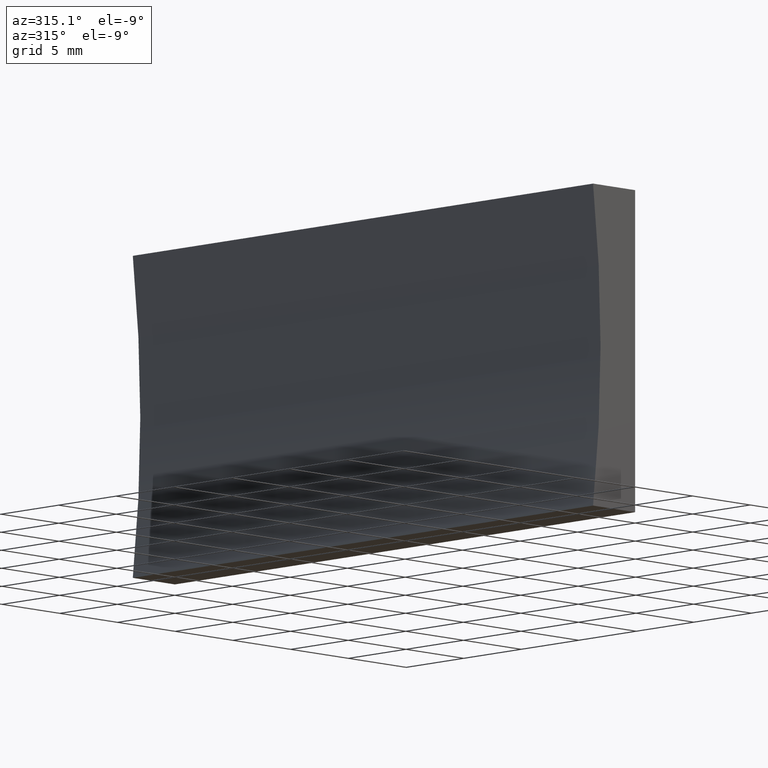
[diagram: clean part render]
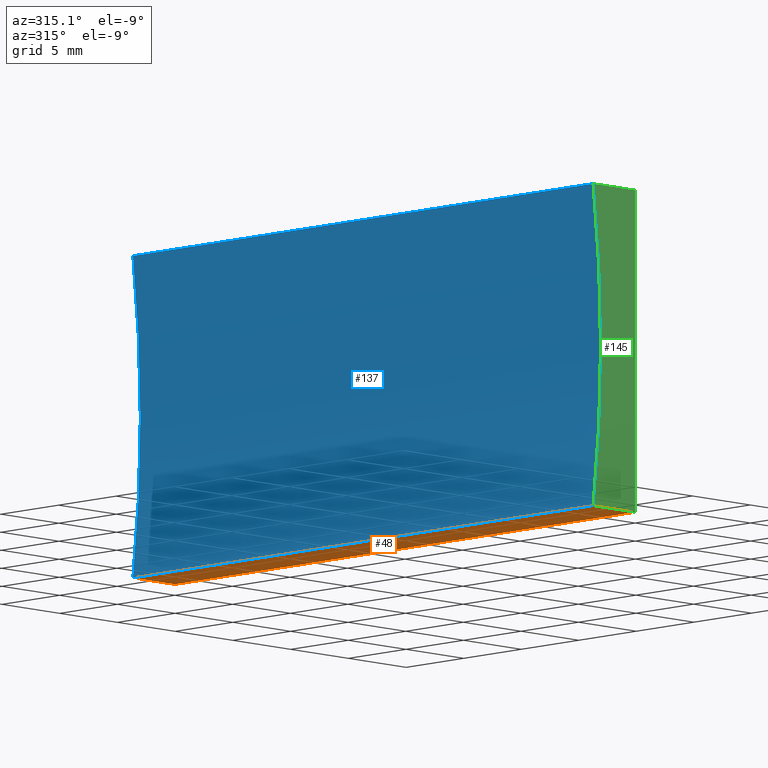
[diagram: same view with three faces highlighted in distinct colors, each labeled with its STEP entity id]
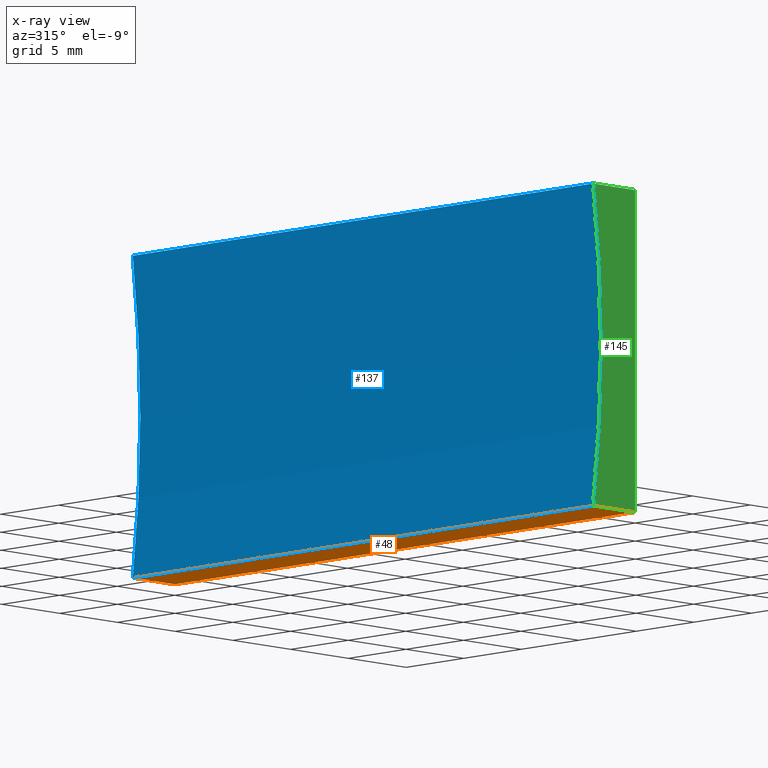
[diagram: x-ray of the same camera — body ghosted, the three highlighted faces saturated]
A machine part, auxiliary view with three faces highlighted in distinct colors.
The next image is the same camera in x-ray (body ghosted, the three faces saturated) — at least one of them is partly hidden behind the body in this view.
Their STEP definitions:

[orange] entity #48 — the highlighted planar face has unit normal (-0, 0, 1).
#10 = VECTOR ( 'NONE', #49, 1000.000000000000000 ) ;
#17 = DIRECTION ( 'NONE',  ( -1.000000000000000000, 0.0000000000000000000, -9.511984616419059400E-016 ) ) ;
#18 = VERTEX_POINT ( 'NONE', #139 ) ;
#25 = CARTESIAN_POINT ( 'NONE',  ( -3.647448026739705400, 40.00000000000000000, 0.0000000000000000000 ) ) ;
#28 = CARTESIAN_POINT ( 'NONE',  ( -3.647448026739705400, 40.00000000000000000, 0.0000000000000000000 ) ) ;
#33 = ORIENTED_EDGE ( 'NONE', *, *, #162, .T. ) ;
#38 = VECTOR ( 'NONE', #168, 1000.000000000000000 ) ;
#39 = AXIS2_PLACEMENT_3D ( 'NONE', #133, #102, #121 ) ;
#45 = ORIENTED_EDGE ( 'NONE', *, *, #60, .F. ) ;
#48 = ADVANCED_FACE ( 'NONE', ( #185 ), #146, .F. ) ;
#49 = DIRECTION ( 'NONE',  ( -0.0000000000000000000, -1.000000000000000000, -0.0000000000000000000 ) ) ;
#59 = EDGE_CURVE ( 'NONE', #18, #95, #196, .T. ) ;
#60 = EDGE_CURVE ( 'NONE', #95, #189, #86, .T. ) ;
#62 = CARTESIAN_POINT ( 'NONE',  ( 0.0000000000000000000, 0.0000000000000000000, 0.0000000000000000000 ) ) ;
#64 = CARTESIAN_POINT ( 'NONE',  ( 0.0000000000000000000, 40.00000000000000000, 0.0000000000000000000 ) ) ;
#69 = ORIENTED_EDGE ( 'NONE', *, *, #59, .F. ) ;
#86 = LINE ( 'NONE', #25, #10 ) ;
#95 = VERTEX_POINT ( 'NONE', #28 ) ;
#100 = CARTESIAN_POINT ( 'NONE',  ( 0.0000000000000000000, 40.00000000000000000, 0.0000000000000000000 ) ) ;
#102 = DIRECTION ( 'NONE',  ( -9.511984616419059400E-016, 0.0000000000000000000, 1.000000000000000000 ) ) ;
#108 = VERTEX_POINT ( 'NONE', #62 ) ;
#121 = DIRECTION ( 'NONE',  ( 1.000000000000000000, 0.0000000000000000000, 9.511984616419059400E-016 ) ) ;
#123 = ORIENTED_EDGE ( 'NONE', *, *, #130, .T. ) ;
#129 = EDGE_LOOP ( 'NONE', ( #33, #45, #69, #123 ) ) ;
#130 = EDGE_CURVE ( 'NONE', #18, #108, #148, .T. ) ;
#133 = CARTESIAN_POINT ( 'NONE',  ( 0.0000000000000000000, 40.00000000000000000, 0.0000000000000000000 ) ) ;
#136 = VECTOR ( 'NONE', #17, 1000.000000000000000 ) ;
#139 = CARTESIAN_POINT ( 'NONE',  ( 0.0000000000000000000, 40.00000000000000000, 0.0000000000000000000 ) ) ;
#146 = PLANE ( 'NONE',  #39 ) ;
#148 = LINE ( 'NONE', #64, #38 ) ;
#152 = CARTESIAN_POINT ( 'NONE',  ( 0.0000000000000000000, 0.0000000000000000000, 0.0000000000000000000 ) ) ;
#155 = CARTESIAN_POINT ( 'NONE',  ( -3.647448026739705400, 0.0000000000000000000, 0.0000000000000000000 ) ) ;
#162 = EDGE_CURVE ( 'NONE', #108, #189, #201, .T. ) ;
#163 = DIRECTION ( 'NONE',  ( -1.000000000000000000, 0.0000000000000000000, -9.511984616419059400E-016 ) ) ;
#168 = DIRECTION ( 'NONE',  ( -0.0000000000000000000, -1.000000000000000000, -0.0000000000000000000 ) ) ;
#171 = VECTOR ( 'NONE', #163, 1000.000000000000000 ) ;
#185 = FACE_OUTER_BOUND ( 'NONE', #129, .T. ) ;
#189 = VERTEX_POINT ( 'NONE', #155 ) ;
#196 = LINE ( 'NONE', #100, #171 ) ;
#201 = LINE ( 'NONE', #152, #136 ) ;

[blue] entity #137 — the highlighted cylindrical surface (partial cylindrical patch) has radius 77.55 mm, axis along (-0, -1, -0).
#1 = CIRCLE ( 'NONE', #204, 77.55000000000001100 ) ;
#2 = EDGE_CURVE ( 'NONE', #58, #117, #200, .T. ) ;
#3 = CARTESIAN_POINT ( 'NONE',  ( -3.647448026739704500, 0.0000000000000000000, 20.00000000000000400 ) ) ;
#5 = VECTOR ( 'NONE', #43, 1000.000000000000000 ) ;
#8 = AXIS2_PLACEMENT_3D ( 'NONE', #81, #159, #99 ) ;
#10 = VECTOR ( 'NONE', #49, 1000.000000000000000 ) ;
#14 = CARTESIAN_POINT ( 'NONE',  ( -80.54999999999999700, 40.00000000000000000, 10.00000000000001200 ) ) ;
#25 = CARTESIAN_POINT ( 'NONE',  ( -3.647448026739705400, 40.00000000000000000, 0.0000000000000000000 ) ) ;
#28 = CARTESIAN_POINT ( 'NONE',  ( -3.647448026739705400, 40.00000000000000000, 0.0000000000000000000 ) ) ;
#32 = CARTESIAN_POINT ( 'NONE',  ( -80.54999999999999700, 0.0000000000000000000, 10.00000000000001200 ) ) ;
#43 = DIRECTION ( 'NONE',  ( -0.0000000000000000000, -1.000000000000000000, -0.0000000000000000000 ) ) ;
#47 = FACE_OUTER_BOUND ( 'NONE', #72, .T. ) ;
#49 = DIRECTION ( 'NONE',  ( -0.0000000000000000000, -1.000000000000000000, -0.0000000000000000000 ) ) ;
#58 = VERTEX_POINT ( 'NONE', #169 ) ;
#60 = EDGE_CURVE ( 'NONE', #95, #189, #86, .T. ) ;
#66 = AXIS2_PLACEMENT_3D ( 'NONE', #14, #76, #82 ) ;
#72 = EDGE_LOOP ( 'NONE', ( #85, #105, #186, #147 ) ) ;
#76 = DIRECTION ( 'NONE',  ( -0.0000000000000000000, -1.000000000000000000, -0.0000000000000000000 ) ) ;
#80 = DIRECTION ( 'NONE',  ( 0.0000000000000000000, 0.0000000000000000000, 1.000000000000000000 ) ) ;
#81 = CARTESIAN_POINT ( 'NONE',  ( -80.54999999999999700, 40.00000000000000000, 10.00000000000001200 ) ) ;
#82 = DIRECTION ( 'NONE',  ( 0.0000000000000000000, 0.0000000000000000000, -1.000000000000000000 ) ) ;
#85 = ORIENTED_EDGE ( 'NONE', *, *, #150, .T. ) ;
#86 = LINE ( 'NONE', #25, #10 ) ;
#95 = VERTEX_POINT ( 'NONE', #28 ) ;
#99 = DIRECTION ( 'NONE',  ( 0.0000000000000000000, 0.0000000000000000000, 1.000000000000000000 ) ) ;
#101 = CIRCLE ( 'NONE', #8, 77.55000000000001100 ) ;
#105 = ORIENTED_EDGE ( 'NONE', *, *, #2, .F. ) ;
#116 = DIRECTION ( 'NONE',  ( -0.0000000000000000000, -1.000000000000000000, -0.0000000000000000000 ) ) ;
#117 = VERTEX_POINT ( 'NONE', #3 ) ;
#120 = CYLINDRICAL_SURFACE ( 'NONE', #66, 77.55000000000001100 ) ;
#137 = ADVANCED_FACE ( 'NONE', ( #47 ), #120, .F. ) ;
#142 = CARTESIAN_POINT ( 'NONE',  ( -3.647448026739704500, 40.00000000000000000, 20.00000000000000400 ) ) ;
#147 = ORIENTED_EDGE ( 'NONE', *, *, #60, .T. ) ;
#150 = EDGE_CURVE ( 'NONE', #189, #117, #1, .T. ) ;
#155 = CARTESIAN_POINT ( 'NONE',  ( -3.647448026739705400, 0.0000000000000000000, 0.0000000000000000000 ) ) ;
#156 = EDGE_CURVE ( 'NONE', #95, #58, #101, .T. ) ;
#159 = DIRECTION ( 'NONE',  ( -0.0000000000000000000, -1.000000000000000000, -0.0000000000000000000 ) ) ;
#169 = CARTESIAN_POINT ( 'NONE',  ( -3.647448026739704500, 40.00000000000000000, 20.00000000000000400 ) ) ;
#186 = ORIENTED_EDGE ( 'NONE', *, *, #156, .F. ) ;
#189 = VERTEX_POINT ( 'NONE', #155 ) ;
#200 = LINE ( 'NONE', #142, #5 ) ;
#204 = AXIS2_PLACEMENT_3D ( 'NONE', #32, #116, #80 ) ;

[green] entity #145 — the highlighted planar face has unit normal (0, 1, 0).
#1 = CIRCLE ( 'NONE', #204, 77.55000000000001100 ) ;
#3 = CARTESIAN_POINT ( 'NONE',  ( -3.647448026739704500, 0.0000000000000000000, 20.00000000000000400 ) ) ;
#17 = DIRECTION ( 'NONE',  ( -1.000000000000000000, 0.0000000000000000000, -9.511984616419059400E-016 ) ) ;
#26 = CARTESIAN_POINT ( 'NONE',  ( -80.54999999999999700, 0.0000000000000000000, 10.00000000000001200 ) ) ;
#29 = VECTOR ( 'NONE', #67, 1000.000000000000000 ) ;
#32 = CARTESIAN_POINT ( 'NONE',  ( -80.54999999999999700, 0.0000000000000000000, 10.00000000000001200 ) ) ;
#44 = AXIS2_PLACEMENT_3D ( 'NONE', #26, #179, #104 ) ;
#53 = ORIENTED_EDGE ( 'NONE', *, *, #162, .F. ) ;
#56 = EDGE_CURVE ( 'NONE', #97, #108, #138, .T. ) ;
#57 = CARTESIAN_POINT ( 'NONE',  ( 1.224646799147353300E-015, 0.0000000000000000000, 20.00000000000000000 ) ) ;
#62 = CARTESIAN_POINT ( 'NONE',  ( 0.0000000000000000000, 0.0000000000000000000, 0.0000000000000000000 ) ) ;
#67 = DIRECTION ( 'NONE',  ( 1.000000000000000000, -0.0000000000000000000, -9.511984616419061300E-016 ) ) ;
#77 = FACE_OUTER_BOUND ( 'NONE', #114, .T. ) ;
#80 = DIRECTION ( 'NONE',  ( 0.0000000000000000000, 0.0000000000000000000, 1.000000000000000000 ) ) ;
#97 = VERTEX_POINT ( 'NONE', #135 ) ;
#103 = DIRECTION ( 'NONE',  ( -6.123233995736766000E-017, -0.0000000000000000000, -1.000000000000000000 ) ) ;
#104 = DIRECTION ( 'NONE',  ( 0.0000000000000000000, -0.0000000000000000000, 1.000000000000000000 ) ) ;
#108 = VERTEX_POINT ( 'NONE', #62 ) ;
#110 = VECTOR ( 'NONE', #103, 1000.000000000000000 ) ;
#111 = CARTESIAN_POINT ( 'NONE',  ( 0.0000000000000000000, 0.0000000000000000000, 0.0000000000000000000 ) ) ;
#112 = ORIENTED_EDGE ( 'NONE', *, *, #56, .F. ) ;
#113 = EDGE_CURVE ( 'NONE', #117, #97, #183, .T. ) ;
#114 = EDGE_LOOP ( 'NONE', ( #53, #112, #158, #203 ) ) ;
#116 = DIRECTION ( 'NONE',  ( -0.0000000000000000000, -1.000000000000000000, -0.0000000000000000000 ) ) ;
#117 = VERTEX_POINT ( 'NONE', #3 ) ;
#135 = CARTESIAN_POINT ( 'NONE',  ( 1.224646799147353300E-015, 0.0000000000000000000, 20.00000000000000000 ) ) ;
#136 = VECTOR ( 'NONE', #17, 1000.000000000000000 ) ;
#138 = LINE ( 'NONE', #111, #110 ) ;
#145 = ADVANCED_FACE ( 'NONE', ( #77 ), #151, .F. ) ;
#150 = EDGE_CURVE ( 'NONE', #189, #117, #1, .T. ) ;
#151 = PLANE ( 'NONE',  #44 ) ;
#152 = CARTESIAN_POINT ( 'NONE',  ( 0.0000000000000000000, 0.0000000000000000000, 0.0000000000000000000 ) ) ;
#155 = CARTESIAN_POINT ( 'NONE',  ( -3.647448026739705400, 0.0000000000000000000, 0.0000000000000000000 ) ) ;
#158 = ORIENTED_EDGE ( 'NONE', *, *, #113, .F. ) ;
#162 = EDGE_CURVE ( 'NONE', #108, #189, #201, .T. ) ;
#179 = DIRECTION ( 'NONE',  ( 0.0000000000000000000, 1.000000000000000000, 0.0000000000000000000 ) ) ;
#183 = LINE ( 'NONE', #57, #29 ) ;
#189 = VERTEX_POINT ( 'NONE', #155 ) ;
#201 = LINE ( 'NONE', #152, #136 ) ;
#203 = ORIENTED_EDGE ( 'NONE', *, *, #150, .F. ) ;
#204 = AXIS2_PLACEMENT_3D ( 'NONE', #32, #116, #80 ) ;